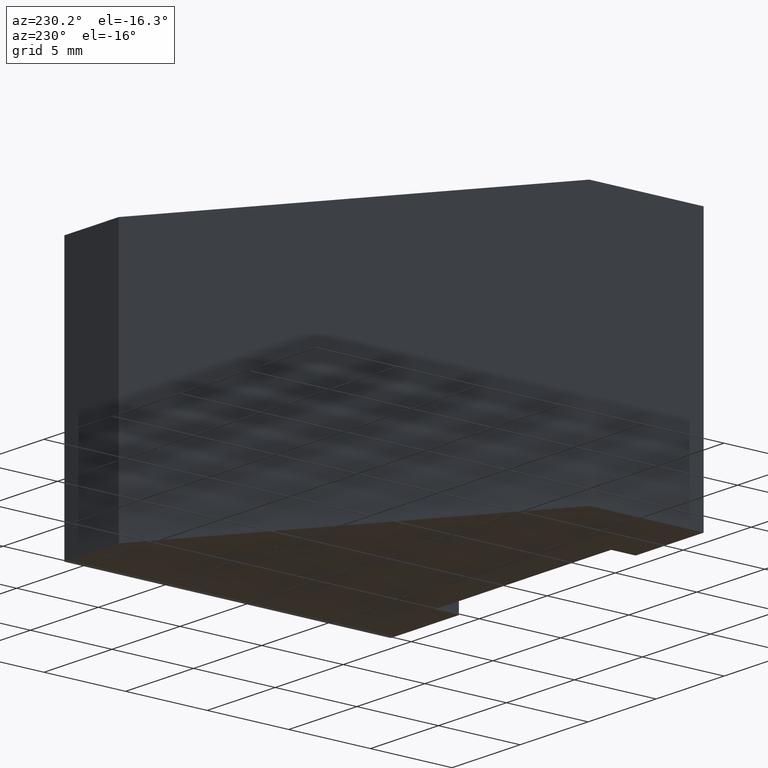
[diagram: clean part render]
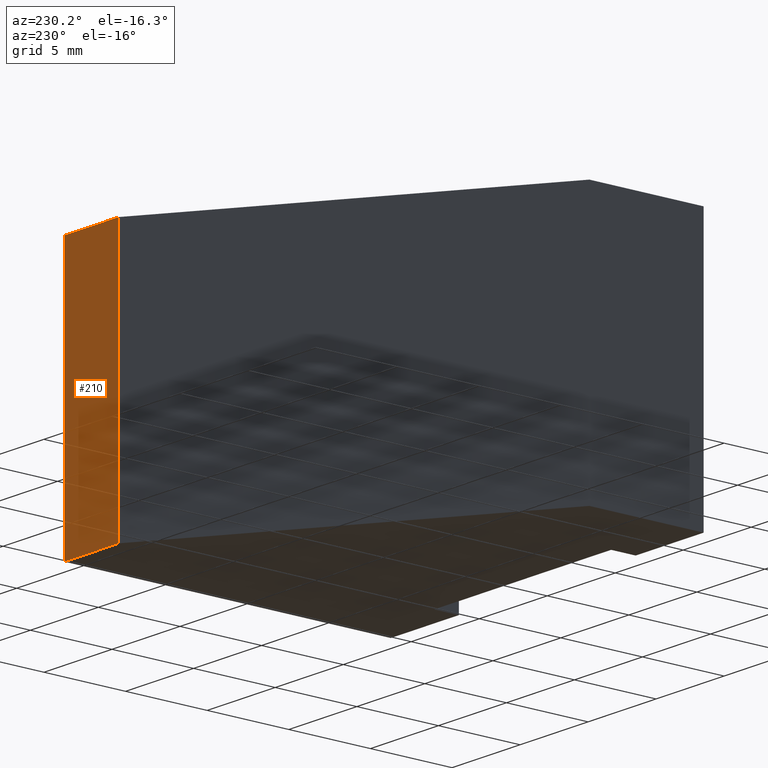
[diagram: same view with one face highlighted and labeled with its STEP entity id]
A machine part, auxiliary view. The second image highlights one B-rep face of the part: STEP entity #210.
In plain terms, the highlighted planar face has unit normal (-0, 1, 0).
Its self-contained STEP definition (entity closure, byte-faithful):
#24=FACE_OUTER_BOUND('',#35,.T.);
#35=EDGE_LOOP('',(#171,#172,#173,#174));
#47=LINE('',#318,#74);
#60=LINE('',#344,#87);
#61=LINE('',#347,#88);
#62=LINE('',#348,#89);
#74=VECTOR('',#260,10.);
#87=VECTOR('',#285,10.);
#88=VECTOR('',#288,10.);
#89=VECTOR('',#289,10.);
#94=VERTEX_POINT('',#302);
#101=VERTEX_POINT('',#316);
#108=VERTEX_POINT('',#342);
#109=VERTEX_POINT('',#346);
#119=EDGE_CURVE('',#94,#101,#47,.T.);
#132=EDGE_CURVE('',#108,#101,#60,.T.);
#133=EDGE_CURVE('',#108,#109,#61,.T.);
#134=EDGE_CURVE('',#109,#94,#62,.T.);
#171=ORIENTED_EDGE('',*,*,#133,.T.);
#172=ORIENTED_EDGE('',*,*,#134,.T.);
#173=ORIENTED_EDGE('',*,*,#119,.T.);
#174=ORIENTED_EDGE('',*,*,#132,.F.);
#199=PLANE('',#244);
#210=ADVANCED_FACE('',(#24),#199,.T.);
#244=AXIS2_PLACEMENT_3D('',#345,#286,#287);
#260=DIRECTION('',(-1.,-1.11022302462516E-15,0.));
#285=DIRECTION('',(0.,0.,-1.));
#286=DIRECTION('center_axis',(-1.11022302462516E-15,1.,0.));
#287=DIRECTION('ref_axis',(0.,0.,1.));
#288=DIRECTION('',(1.,1.11022302462516E-15,0.));
#289=DIRECTION('',(0.,0.,-1.));
#302=CARTESIAN_POINT('',(11.5,20.,-8.));
#316=CARTESIAN_POINT('',(7.49999999999999,20.,-8.));
#318=CARTESIAN_POINT('',(7.49999999999999,20.,-8.));
#342=CARTESIAN_POINT('',(7.49999999999999,20.,8.));
#344=CARTESIAN_POINT('',(7.49999999999999,20.,0.));
#345=CARTESIAN_POINT('Origin',(7.49999999999999,20.,0.));
#346=CARTESIAN_POINT('',(11.5,20.,8.));
#347=CARTESIAN_POINT('',(7.49999999999999,20.,8.));
#348=CARTESIAN_POINT('',(11.5,20.,0.));